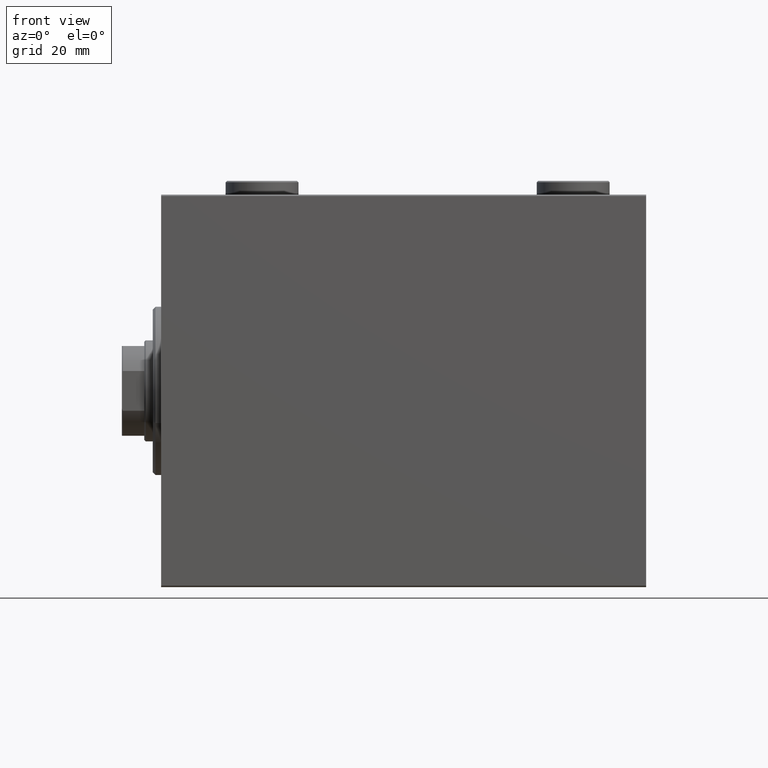
[diagram: clean part render]
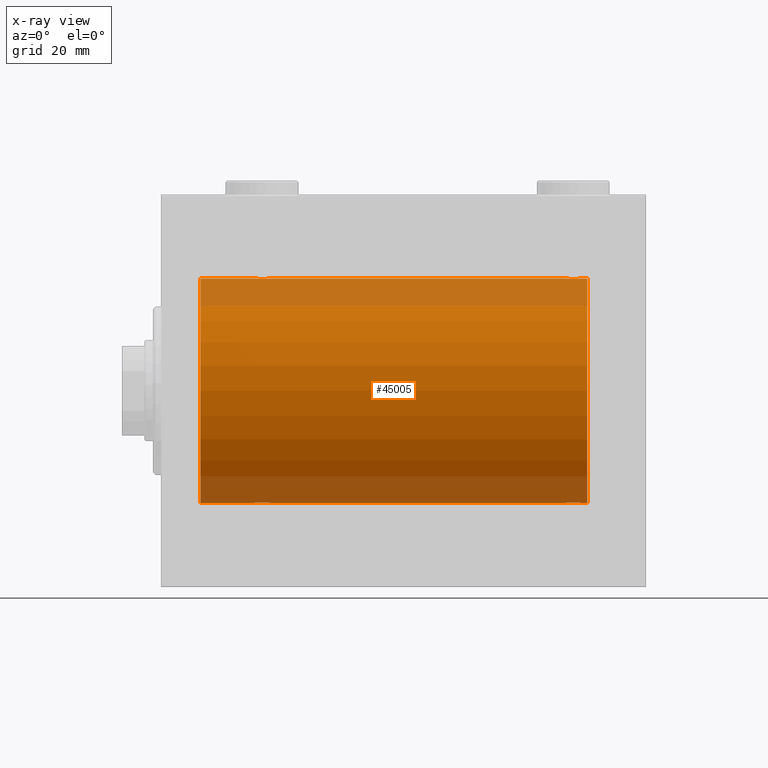
[diagram: x-ray — body ghosted, one internal face saturated and labeled with its STEP entity id]
A machine part, front view, then the same camera in x-ray: the body is ghosted and one INTERNAL B-rep face — a face not visible from any outside direction — is saturated and labeled: STEP entity #45005.
In plain terms, the highlighted cylindrical surface (partial cylindrical patch) has radius 40 mm, axis along (-1, -0, -0).
Its self-contained STEP definition (entity closure, byte-faithful):
#66 = CARTESIAN_POINT ( 'NONE',  ( 144.3956640008792078, -1.502129635934003948, 39.97212271185186694 ) ) ;
#126 = CARTESIAN_POINT ( 'NONE',  ( 39.00000000000000000, 1.037715139942869821E-15, 40.00000000000000000 ) ) ;
#578 = CARTESIAN_POINT ( 'NONE',  ( 38.38251680911464803, -1.833695109615718355, 39.95828327492363741 ) ) ;
#1170 = CARTESIAN_POINT ( 'NONE',  ( 39.00000000000000000, 4.898587181754971267E-15, -40.00000000000000000 ) ) ;
#1403 = VERTEX_POINT ( 'NONE', #8763 ) ;
#1945 = LINE ( 'NONE', #33114, #17585 ) ;
#2087 = CIRCLE ( 'NONE', #43776, 40.00000000000000000 ) ;
#2125 = CARTESIAN_POINT ( 'NONE',  ( 36.96938341894464486, -2.845855236045336412, -39.89870693240652599 ) ) ;
#2176 = DIRECTION ( 'NONE',  ( -1.000000000000000000, -0.000000000000000000, -0.000000000000000000 ) ) ;
#2296 = CARTESIAN_POINT ( 'NONE',  ( 145.4991153159597275, -2.604941918888306951, -39.91523680494984205 ) ) ;
#2454 = CARTESIAN_POINT ( 'NONE',  ( 33.30278659419118270, -1.327859336864150253, 39.97836169682017982 ) ) ;
#3080 = DIRECTION ( 'NONE',  ( -1.000000000000000000, 0.000000000000000000, 0.000000000000000000 ) ) ;
#3244 = VECTOR ( 'NONE', #28144, 1000.000000000000000 ) ;
#3291 = CARTESIAN_POINT ( 'NONE',  ( 144.7390238300526164, -1.981471132463162643, 39.95113231465138171 ) ) ;
#3352 = CARTESIAN_POINT ( 'NONE',  ( 39.00000000000000711, -0.3964922677423692865, 40.00000000000000711 ) ) ;
#3373 = CARTESIAN_POINT ( 'NONE',  ( 13.99999999999998401, 0.000000000000000000, 0.000000000000000000 ) ) ;
#3399 = ORIENTED_EDGE ( 'NONE', *, *, #13589, .T. ) ;
#3522 = CARTESIAN_POINT ( 'NONE',  ( 144.0957482634864846, -0.7773146824711021363, 39.99291453282343412 ) ) ;
#3580 = CARTESIAN_POINT ( 'NONE',  ( 34.16955177177597847, -2.384933850258112553, 39.92898715513240404 ) ) ;
#3654 = VERTEX_POINT ( 'NONE', #1170 ) ;
#3838 = VERTEX_POINT ( 'NONE', #37583 ) ;
#3888 = DIRECTION ( 'NONE',  ( -1.000000000000000000, -0.000000000000000000, -0.000000000000000000 ) ) ;
#4021 = CARTESIAN_POINT ( 'NONE',  ( 37.98136279514229585, -2.261082456166707111, 39.93628274425758207 ) ) ;
#4598 = EDGE_CURVE ( 'NONE', #16472, #37709, #32746, .T. ) ;
#4637 = CARTESIAN_POINT ( 'NONE',  ( 32.99999999999999289, -1.483452932268112700E-23, 40.00000000000000000 ) ) ;
#5248 = CARTESIAN_POINT ( 'NONE',  ( 152.0000000000000000, 0.000000000000000000, 40.00000000000000000 ) ) ;
#5257 = CARTESIAN_POINT ( 'NONE',  ( 146.2254432117366036, -2.904869018727213703, -39.89440043036668726 ) ) ;
#5456 = ORIENTED_EDGE ( 'NONE', *, *, #14884, .F. ) ;
#5488 = CARTESIAN_POINT ( 'NONE',  ( 146.0351067414649151, -2.847401743820447972, -39.89859630624609110 ) ) ;
#5644 = ORIENTED_EDGE ( 'NONE', *, *, #14421, .F. ) ;
#5882 = CARTESIAN_POINT ( 'NONE',  ( 33.01898122889073051, -0.3904143323715976166, 39.99856256910221219 ) ) ;
#6444 = EDGE_CURVE ( 'NONE', #37709, #7546, #2087, .T. ) ;
#6610 = EDGE_CURVE ( 'NONE', #39106, #25376, #39548, .T. ) ;
#6716 = CARTESIAN_POINT ( 'NONE',  ( 147.7745567882635100, -2.904869018727220364, 39.89440043036669437 ) ) ;
#6816 = EDGE_CURVE ( 'NONE', #19506, #7546, #28508, .T. ) ;
#7166 = CARTESIAN_POINT ( 'NONE',  ( 145.0153855218772208, -2.258217541132898631, 39.93644519243653690 ) ) ;
#7225 = CARTESIAN_POINT ( 'NONE',  ( 36.39109692509333627, -2.980812880639903906, 39.88879797994688658 ) ) ;
#7449 = CARTESIAN_POINT ( 'NONE',  ( 34.66775731134134730, -2.695129988695744494, 39.90917164320281074 ) ) ;
#7546 = VERTEX_POINT ( 'NONE', #39032 ) ;
#7772 = CARTESIAN_POINT ( 'NONE',  ( 152.0000000000000000, 4.898587196589413026E-15, -40.00000000000000000 ) ) ;
#8051 = VECTOR ( 'NONE', #32102, 1000.000000000000000 ) ;
#8469 = CARTESIAN_POINT ( 'NONE',  ( 149.2609761699473836, -1.981471132463159313, -39.95113231465138171 ) ) ;
#8592 = DIRECTION ( 'NONE',  ( -1.000000000000000000, -0.000000000000000000, -0.000000000000000000 ) ) ;
#8694 = CARTESIAN_POINT ( 'NONE',  ( 146.8043946892691451, -3.000157693440632212, -39.88732948994960736 ) ) ;
#8752 = CARTESIAN_POINT ( 'NONE',  ( 33.39811271871507614, -1.506322235190776127, -39.97196309111974699 ) ) ;
#8763 = CARTESIAN_POINT ( 'NONE',  ( 144.0000000000000284, 2.642090954555614270E-16, -40.00000000000000000 ) ) ;
#9210 = CARTESIAN_POINT ( 'NONE',  ( 39.00000000000000000, -0.1957844162750501937, -39.99999999999999289 ) ) ;
#9441 = CARTESIAN_POINT ( 'NONE',  ( 34.17309815367587333, -2.387636253591803648, -39.92882473497732576 ) ) ;
#9703 = CARTESIAN_POINT ( 'NONE',  ( 145.4955691708653092, -2.602909538701757342, 39.91537030566259858 ) ) ;
#9844 = EDGE_LOOP ( 'NONE', ( #16695, #34282, #23119, #24502, #19437, #32510, #25388, #19690, #14177, #5644, #3399, #5456 ) ) ;
#9873 = CARTESIAN_POINT ( 'NONE',  ( 32.99999999999999289, 8.398598542115384856E-15, -40.00000000000000000 ) ) ;
#10207 = CARTESIAN_POINT ( 'NONE',  ( 35.79958713980802543, -2.999840380514749327, 39.88735335562824247 ) ) ;
#10364 = CARTESIAN_POINT ( 'NONE',  ( 144.1533472698686182, -0.9668189122103342248, 39.98872185468384544 ) ) ;
#10585 = CARTESIAN_POINT ( 'NONE',  ( 147.3910969250933931, -2.980812880639897688, 39.88879797994690080 ) ) ;
#10648 = CARTESIAN_POINT ( 'NONE',  ( 35.22130476584258219, -2.903766417398241373, 39.89448096967571189 ) ) ;
#10872 = CARTESIAN_POINT ( 'NONE',  ( 33.73902383005257377, -1.981471132463168416, 39.95113231465138881 ) ) ;
#11349 = CARTESIAN_POINT ( 'NONE',  ( 39.00000000000000000, 1.037715139942869821E-15, 40.00000000000000000 ) ) ;
#11890 = CARTESIAN_POINT ( 'NONE',  ( 150.0000000000000284, 4.898587181765620889E-15, -40.00000000000000000 ) ) ;
#11952 = CARTESIAN_POINT ( 'NONE',  ( 36.20041286019198168, -2.999840380514733340, -39.88735335562824957 ) ) ;
#12120 = CARTESIAN_POINT ( 'NONE',  ( 147.3952248345358669, -2.980272303779540444, -39.88883864243170763 ) ) ;
#12186 = CARTESIAN_POINT ( 'NONE',  ( 33.74170329679496660, -1.984537326394296253, -39.95097977400577349 ) ) ;
#12353 = CARTESIAN_POINT ( 'NONE',  ( 147.2004128601920740, -2.999840380514735561, -39.88735335562826378 ) ) ;
#12578 = CARTESIAN_POINT ( 'NONE',  ( 144.3046299229156375, -1.331594428131649410, -39.97823692017209396 ) ) ;
#12878 = CARTESIAN_POINT ( 'NONE',  ( 35.80439468926913094, -3.000157693440628659, -39.88732948994960736 ) ) ;
#13284 = B_SPLINE_CURVE_WITH_KNOTS ( 'NONE', 3,
 ( #16333, #9210, #32841, #43816, #44277, #22969, #33519, #25962, #15641, #29633, #18860, #26195, #36944, #2125, #26420, #40843, #11952, #12878, #26877, #16101, #19086, #33062, #19308, #9441, #36716, #12186, #30090, #8752, #26646, #40610, #33288, #23435 ),
 .UNSPECIFIED., .F., .F.,
 ( 4, 2, 2, 2, 2, 2, 2, 2, 2, 2, 2, 2, 2, 2, 2, 4 ),
 ( 0.009382660366305113978, 0.009968941372944149781, 0.01055522237958318559, 0.01114150338622222139, 0.01172778439286125719, 0.01231406539950029300, 0.01290034640613932707, 0.01348662741277836287, 0.01407290841941739867, 0.01465918942605643448, 0.01524547043269547028, 0.01583175143933450435, 0.01641803244597354189, 0.01700431345261257943, 0.01759059445925161697, 0.01876315647252968857 ),
 .UNSPECIFIED. ) ;
#13589 = EDGE_CURVE ( 'NONE', #29941, #3838, #16314, .T. ) ;
#13821 = CARTESIAN_POINT ( 'NONE',  ( 148.8269018463241480, -2.387636253591820079, 39.92882473497732576 ) ) ;
#13896 = DIRECTION ( 'NONE',  ( 0.000000000000000000, 0.000000000000000000, 1.000000000000000000 ) ) ;
#14042 = CARTESIAN_POINT ( 'NONE',  ( 146.6047751654642468, -2.980272303779546217, 39.88883864243170052 ) ) ;
#14177 = ORIENTED_EDGE ( 'NONE', *, *, #37969, .T. ) ;
#14421 = EDGE_CURVE ( 'NONE', #29941, #44025, #1945, .T. ) ;
#14450 = LINE ( 'NONE', #35311, #8051 ) ;
#14516 = CARTESIAN_POINT ( 'NONE',  ( 152.0000000000000000, 0.000000000000000000, 40.00000000000000000 ) ) ;
#14556 = CARTESIAN_POINT ( 'NONE',  ( 38.69537007708435539, -1.331594428131644747, 39.97823692017209396 ) ) ;
#14884 = EDGE_CURVE ( 'NONE', #40123, #3838, #14450, .T. ) ;
#15348 = CARTESIAN_POINT ( 'NONE',  ( 149.9042517365135438, -0.7773146824710949199, -39.99291453282344833 ) ) ;
#15641 = CARTESIAN_POINT ( 'NONE',  ( 38.26097616994741912, -1.981471132463159535, -39.95113231465138881 ) ) ;
#16042 = CARTESIAN_POINT ( 'NONE',  ( 144.0797382500835795, -0.7903958539027464703, -39.99381900068937057 ) ) ;
#16101 = CARTESIAN_POINT ( 'NONE',  ( 35.22544321173659654, -2.904869018727211483, -39.89440043036668726 ) ) ;
#16185 = EDGE_CURVE ( 'NONE', #39106, #40123, #19084, .T. ) ;
#16270 = CARTESIAN_POINT ( 'NONE',  ( 144.6174831908854230, -1.833695109615717245, -39.95828327492364451 ) ) ;
#16314 = B_SPLINE_CURVE_WITH_KNOTS ( 'NONE', 3,
 ( #34466, #34909, #30580, #3522, #10364, #24365, #66, #38112, #3291, #7166, #34019, #9703, #41558, #16602, #24145, #14042, #42001, #27146, #10585, #6716, #20705, #34683, #31251, #13821, #41111, #16828, #44770, #44550, #41334, #27812, #24594, #38555 ),
 .UNSPECIFIED., .F., .F.,
 ( 4, 2, 2, 2, 2, 2, 2, 2, 2, 2, 2, 2, 2, 2, 2, 4 ),
 ( 0.009382660366305094896, 0.009968941372944130699, 0.01055522237958316650, 0.01114150338622220404, 0.01172778439286123985, 0.01231406539950027565, 0.01290034640613930972, 0.01348662741277834379, 0.01407290841941737959, 0.01465918942605641540, 0.01524547043269544946, 0.01583175143933448353, 0.01641803244597352107, 0.01700431345261255514, 0.01759059445925158921, 0.01876315647252969204 ),
 .UNSPECIFIED. ) ;
#16333 = CARTESIAN_POINT ( 'NONE',  ( 39.00000000000000000, 4.898587181754971267E-15, -40.00000000000000000 ) ) ;
#16472 = VERTEX_POINT ( 'NONE', #9873 ) ;
#16602 = CARTESIAN_POINT ( 'NONE',  ( 146.0306165810553409, -2.845855236045348402, 39.89870693240650468 ) ) ;
#16695 = ORIENTED_EDGE ( 'NONE', *, *, #16185, .F. ) ;
#16828 = CARTESIAN_POINT ( 'NONE',  ( 149.2582967032050760, -1.984537326394308909, 39.95097977400577349 ) ) ;
#17135 = EDGE_CURVE ( 'NONE', #3654, #16472, #13284, .T. ) ;
#17553 = CARTESIAN_POINT ( 'NONE',  ( 36.19560531073086906, -3.000157693440643758, 39.88732948994960026 ) ) ;
#17585 = VECTOR ( 'NONE', #2176, 1000.000000000000000 ) ;
#17774 = CARTESIAN_POINT ( 'NONE',  ( 35.60477516546423260, -2.980272303779553766, 39.88883864243167920 ) ) ;
#18003 = CARTESIAN_POINT ( 'NONE',  ( 36.96489325853514174, -2.847401743820462183, 39.89859630624607689 ) ) ;
#18860 = CARTESIAN_POINT ( 'NONE',  ( 37.83044822822401443, -2.384933850258097010, -39.92898715513240404 ) ) ;
#19022 = CARTESIAN_POINT ( 'NONE',  ( 147.9693834189446591, -2.845855236045343961, -39.89870693240651889 ) ) ;
#19084 = CIRCLE ( 'NONE', #27860, 40.00000000000000000 ) ;
#19086 = CARTESIAN_POINT ( 'NONE',  ( 35.03510674146485115, -2.847401743820447084, -39.89859630624608400 ) ) ;
#19249 = CARTESIAN_POINT ( 'NONE',  ( 148.9846144781228645, -2.258217541132895967, -39.93644519243653690 ) ) ;
#19308 = CARTESIAN_POINT ( 'NONE',  ( 34.49911531595964220, -2.604941918888299401, -39.91523680494982784 ) ) ;
#19437 = ORIENTED_EDGE ( 'NONE', *, *, #17135, .T. ) ;
#19475 = CARTESIAN_POINT ( 'NONE',  ( 144.7417032967949524, -1.984537326394303802, -39.95097977400578060 ) ) ;
#19506 = VERTEX_POINT ( 'NONE', #4637 ) ;
#19690 = ORIENTED_EDGE ( 'NONE', *, *, #6816, .F. ) ;
#19870 = CARTESIAN_POINT ( 'NONE',  ( 33.09574826348647036, -0.7773146824711036906, 39.99291453282343412 ) ) ;
#20705 = CARTESIAN_POINT ( 'NONE',  ( 147.9648932585351702, -2.847401743820454190, 39.89859630624609821 ) ) ;
#20986 = CARTESIAN_POINT ( 'NONE',  ( 34.01538552187719233, -2.258217541132905293, 39.93644519243653690 ) ) ;
#21436 = CARTESIAN_POINT ( 'NONE',  ( 37.50088468404035069, -2.604941918888315833, 39.91523680494983495 ) ) ;
#22355 = CARTESIAN_POINT ( 'NONE',  ( 152.0000000000000000, 4.898587196589413026E-15, -40.00000000000000000 ) ) ;
#22453 = CARTESIAN_POINT ( 'NONE',  ( 148.8304482282240429, -2.384933850258102783, -39.92898715513240404 ) ) ;
#22509 = AXIS2_PLACEMENT_3D ( 'NONE', #43952, #44639, #27460 ) ;
#22878 = FACE_OUTER_BOUND ( 'NONE', #9844, .T. ) ;
#22905 = CARTESIAN_POINT ( 'NONE',  ( 145.1730981536759089, -2.387636253591812974, -39.92882473497733287 ) ) ;
#22969 = CARTESIAN_POINT ( 'NONE',  ( 38.69721340580881019, -1.327859336864143147, -39.97836169682018692 ) ) ;
#23119 = ORIENTED_EDGE ( 'NONE', *, *, #34210, .T. ) ;
#23435 = CARTESIAN_POINT ( 'NONE',  ( 32.99999999999999289, 8.398598542115384856E-15, -40.00000000000000000 ) ) ;
#24002 = DIRECTION ( 'NONE',  ( -1.000000000000000000, 0.000000000000000000, 0.000000000000000000 ) ) ;
#24145 = CARTESIAN_POINT ( 'NONE',  ( 146.2213047658425467, -2.903766417398230271, 39.89448096967571189 ) ) ;
#24365 = CARTESIAN_POINT ( 'NONE',  ( 144.3027865941912182, -1.327859336864145590, 39.97836169682017982 ) ) ;
#24502 = ORIENTED_EDGE ( 'NONE', *, *, #30018, .T. ) ;
#24594 = CARTESIAN_POINT ( 'NONE',  ( 150.0000000000000284, -0.3964922677423700081, 40.00000000000001421 ) ) ;
#24882 = CARTESIAN_POINT ( 'NONE',  ( 36.77455678826341057, -2.904869018727228358, 39.89440043036668015 ) ) ;
#24937 = CARTESIAN_POINT ( 'NONE',  ( 13.99999999999998401, 4.898587196589413026E-15, -40.00000000000000000 ) ) ;
#25376 = VERTEX_POINT ( 'NONE', #27084 ) ;
#25388 = ORIENTED_EDGE ( 'NONE', *, *, #6444, .T. ) ;
#25899 = CARTESIAN_POINT ( 'NONE',  ( 149.9810187711093477, -0.3904143323715905112, -39.99856256910220509 ) ) ;
#25962 = CARTESIAN_POINT ( 'NONE',  ( 38.38507600915352924, -1.830402106103509174, -39.95843610133493229 ) ) ;
#26131 = CARTESIAN_POINT ( 'NONE',  ( 149.6043359991207922, -1.502129635934003726, -39.97212271185185273 ) ) ;
#26195 = CARTESIAN_POINT ( 'NONE',  ( 37.50443082913467663, -2.602909538701744463, -39.91537030566261279 ) ) ;
#26358 = CARTESIAN_POINT ( 'NONE',  ( 149.8466527301314386, -0.9668189122103240107, -39.98872185468385254 ) ) ;
#26420 = CARTESIAN_POINT ( 'NONE',  ( 36.77869523415741781, -2.903766417398227162, -39.89448096967571900 ) ) ;
#26583 = CARTESIAN_POINT ( 'NONE',  ( 144.0000000000000284, 2.642090954555614270E-16, -40.00000000000000000 ) ) ;
#26646 = CARTESIAN_POINT ( 'NONE',  ( 33.30462992291564461, -1.331594428131637420, -39.97823692017210817 ) ) ;
#26877 = CARTESIAN_POINT ( 'NONE',  ( 35.60890307490667794, -2.980812880639888363, -39.88879797994690080 ) ) ;
#27084 = CARTESIAN_POINT ( 'NONE',  ( 150.0000000000000284, 4.898587181765620889E-15, -40.00000000000000000 ) ) ;
#27146 = CARTESIAN_POINT ( 'NONE',  ( 147.1956053107309685, -3.000157693440639761, 39.88732948994960736 ) ) ;
#27460 = DIRECTION ( 'NONE',  ( 0.000000000000000000, 0.000000000000000000, 1.000000000000000000 ) ) ;
#27812 = CARTESIAN_POINT ( 'NONE',  ( 149.9202617499165342, -0.7903958539027363672, 39.99381900068937767 ) ) ;
#27860 = AXIS2_PLACEMENT_3D ( 'NONE', #34474, #3080, #45225 ) ;
#27870 = CARTESIAN_POINT ( 'NONE',  ( 35.03061658105534804, -2.845855236045349734, 39.89870693240651889 ) ) ;
#28144 = DIRECTION ( 'NONE',  ( -1.000000000000000000, -0.000000000000000000, -0.000000000000000000 ) ) ;
#28324 = CARTESIAN_POINT ( 'NONE',  ( 38.60188728128492386, -1.506322235190783232, 39.97196309111974699 ) ) ;
#28495 = CARTESIAN_POINT ( 'NONE',  ( 152.0000000000000000, 4.898587196589413026E-15, -40.00000000000000000 ) ) ;
#28508 = LINE ( 'NONE', #14516, #39431 ) ;
#29633 = CARTESIAN_POINT ( 'NONE',  ( 37.98461447812281477, -2.258217541132894191, -39.93644519243654400 ) ) ;
#29941 = VERTEX_POINT ( 'NONE', #39115 ) ;
#30018 = EDGE_CURVE ( 'NONE', #1403, #3654, #32705, .T. ) ;
#30026 = CARTESIAN_POINT ( 'NONE',  ( 144.0000000000000284, -0.3964922677423716735, -40.00000000000001421 ) ) ;
#30090 = CARTESIAN_POINT ( 'NONE',  ( 33.61748319088536618, -1.833695109615709917, -39.95828327492364451 ) ) ;
#30580 = CARTESIAN_POINT ( 'NONE',  ( 144.0189812288907660, -0.3904143323715967839, 39.99856256910221219 ) ) ;
#31251 = CARTESIAN_POINT ( 'NONE',  ( 148.5008846840404146, -2.604941918888313612, 39.91523680494984916 ) ) ;
#31535 = CARTESIAN_POINT ( 'NONE',  ( 38.92026174991647025, -0.7903958539027386987, 39.99381900068935636 ) ) ;
#31977 = CARTESIAN_POINT ( 'NONE',  ( 38.25829670320502629, -1.984537326394305801, 39.95097977400578060 ) ) ;
#32102 = DIRECTION ( 'NONE',  ( -1.000000000000000000, -0.000000000000000000, -0.000000000000000000 ) ) ;
#32510 = ORIENTED_EDGE ( 'NONE', *, *, #4598, .T. ) ;
#32705 = LINE ( 'NONE', #43015, #3244 ) ;
#32746 = LINE ( 'NONE', #7772, #36458 ) ;
#32774 = CARTESIAN_POINT ( 'NONE',  ( 150.0000000000000568, -0.1957844162750477235, -40.00000000000000000 ) ) ;
#32841 = CARTESIAN_POINT ( 'NONE',  ( 38.98101877110926239, -0.3904143323715922875, -39.99856256910221219 ) ) ;
#33062 = CARTESIAN_POINT ( 'NONE',  ( 34.67146355253703405, -2.696981015661913172, -39.90904630908467254 ) ) ;
#33114 = CARTESIAN_POINT ( 'NONE',  ( 152.0000000000000000, 0.000000000000000000, 40.00000000000000000 ) ) ;
#33225 = CARTESIAN_POINT ( 'NONE',  ( 148.5044308291346908, -2.602909538701751568, -39.91537030566260569 ) ) ;
#33288 = CARTESIAN_POINT ( 'NONE',  ( 33.00000000000000000, -0.3964922677423601272, -40.00000000000001421 ) ) ;
#33457 = CARTESIAN_POINT ( 'NONE',  ( 144.3981127187151969, -1.506322235190783898, -39.97196309111976831 ) ) ;
#33519 = CARTESIAN_POINT ( 'NONE',  ( 38.60433599912082769, -1.502129635933996621, -39.97212271185184562 ) ) ;
#33850 = CARTESIAN_POINT ( 'NONE',  ( 33.15334726986859692, -0.9668189122103387767, 39.98872185468385254 ) ) ;
#34019 = CARTESIAN_POINT ( 'NONE',  ( 145.1695517717760424, -2.384933850258109445, 39.92898715513240404 ) ) ;
#34210 = EDGE_CURVE ( 'NONE', #25376, #1403, #44212, .T. ) ;
#34282 = ORIENTED_EDGE ( 'NONE', *, *, #6610, .T. ) ;
#34466 = CARTESIAN_POINT ( 'NONE',  ( 144.0000000000000284, -1.482387970046064334E-23, 40.00000000000000000 ) ) ;
#34474 = CARTESIAN_POINT ( 'NONE',  ( 152.0000000000000000, 0.000000000000000000, 0.000000000000000000 ) ) ;
#34683 = CARTESIAN_POINT ( 'NONE',  ( 148.3285364474630228, -2.696981015661923387, 39.90904630908469386 ) ) ;
#34744 = CARTESIAN_POINT ( 'NONE',  ( 37.82690184632411246, -2.387636253591820079, 39.92882473497731866 ) ) ;
#34909 = CARTESIAN_POINT ( 'NONE',  ( 144.0000000000000284, -0.1957844162750525807, 40.00000000000000000 ) ) ;
#34969 = CARTESIAN_POINT ( 'NONE',  ( 37.32853644746295885, -2.696981015661930936, 39.90904630908465833 ) ) ;
#35244 = B_SPLINE_CURVE_WITH_KNOTS ( 'NONE', 3,
 ( #37047, #37281, #5882, #19870, #33850, #2454, #41620, #35414, #10872, #20986, #3580, #42283, #7449, #27870, #10648, #17774, #10207, #17553, #7225, #24882, #18003, #34969, #21436, #34744, #4021, #31977, #578, #28324, #14556, #31535, #3352, #126 ),
 .UNSPECIFIED., .F., .F.,
 ( 4, 2, 2, 2, 2, 2, 2, 2, 2, 2, 2, 2, 2, 2, 2, 4 ),
 ( 0.009382660366305105304, 0.009968941372944142842, 0.01055522237958318038, 0.01114150338622221965, 0.01172778439286125719, 0.01231406539950029473, 0.01290034640613933400, 0.01348662741277837154, 0.01407290841941740908, 0.01465918942605644835, 0.01524547043269548416, 0.01583175143933452517, 0.01641803244597356271, 0.01700431345261260024, 0.01759059445925163778, 0.01876315647252971286 ),
 .UNSPECIFIED. ) ;
#35311 = CARTESIAN_POINT ( 'NONE',  ( 152.0000000000000000, 0.000000000000000000, 40.00000000000000000 ) ) ;
#35414 = CARTESIAN_POINT ( 'NONE',  ( 33.61492399084646365, -1.830402106103518722, 39.95843610133494650 ) ) ;
#36433 = CARTESIAN_POINT ( 'NONE',  ( 148.3322426886586527, -2.695129988695739609, -39.90917164320282495 ) ) ;
#36458 = VECTOR ( 'NONE', #3888, 1000.000000000000000 ) ;
#36653 = CARTESIAN_POINT ( 'NONE',  ( 146.6089030749067490, -2.980812880639890583, -39.88879797994690080 ) ) ;
#36716 = CARTESIAN_POINT ( 'NONE',  ( 34.01863720485771125, -2.261082456166694676, -39.93628274425758917 ) ) ;
#36851 = CYLINDRICAL_SURFACE ( 'NONE', #22509, 40.00000000000000000 ) ;
#36879 = CARTESIAN_POINT ( 'NONE',  ( 145.0186372048578107, -2.261082456166703558, -39.93628274425759628 ) ) ;
#36944 = CARTESIAN_POINT ( 'NONE',  ( 37.33224268865864559, -2.695129988695730727, -39.90917164320281074 ) ) ;
#37047 = CARTESIAN_POINT ( 'NONE',  ( 32.99999999999999289, -1.483452932268112700E-23, 40.00000000000000000 ) ) ;
#37281 = CARTESIAN_POINT ( 'NONE',  ( 32.99999999999997158, -0.1957844162750552452, 40.00000000000000000 ) ) ;
#37583 = CARTESIAN_POINT ( 'NONE',  ( 150.0000000000000284, 1.446721683758770418E-15, 40.00000000000000000 ) ) ;
#37709 = VERTEX_POINT ( 'NONE', #24937 ) ;
#37969 = EDGE_CURVE ( 'NONE', #19506, #44025, #35244, .T. ) ;
#38112 = CARTESIAN_POINT ( 'NONE',  ( 144.6149239908465063, -1.830402106103516280, 39.95843610133492518 ) ) ;
#38555 = CARTESIAN_POINT ( 'NONE',  ( 150.0000000000000284, 1.446721683758770418E-15, 40.00000000000000000 ) ) ;
#38576 = DIRECTION ( 'NONE',  ( -1.000000000000000000, -0.000000000000000000, -0.000000000000000000 ) ) ;
#39032 = CARTESIAN_POINT ( 'NONE',  ( 13.99999999999998401, 0.000000000000000000, 40.00000000000000000 ) ) ;
#39106 = VERTEX_POINT ( 'NONE', #28495 ) ;
#39115 = CARTESIAN_POINT ( 'NONE',  ( 144.0000000000000284, -1.482387970046064334E-23, 40.00000000000000000 ) ) ;
#39431 = VECTOR ( 'NONE', #38576, 1000.000000000000000 ) ;
#39548 = LINE ( 'NONE', #22355, #41605 ) ;
#39861 = CARTESIAN_POINT ( 'NONE',  ( 149.3850760091535790, -1.830402106103514281, -39.95843610133493229 ) ) ;
#40123 = VERTEX_POINT ( 'NONE', #5248 ) ;
#40317 = CARTESIAN_POINT ( 'NONE',  ( 145.6714635525370625, -2.696981015661914949, -39.90904630908467965 ) ) ;
#40610 = CARTESIAN_POINT ( 'NONE',  ( 33.07973825008353685, -0.7903958539027335917, -39.99381900068937057 ) ) ;
#40843 = CARTESIAN_POINT ( 'NONE',  ( 36.39522483453575319, -2.980272303779539556, -39.88883864243169342 ) ) ;
#41111 = CARTESIAN_POINT ( 'NONE',  ( 148.9813627951423030, -2.261082456166709775, 39.93628274425758207 ) ) ;
#41334 = CARTESIAN_POINT ( 'NONE',  ( 149.6953700770844193, -1.331594428131642527, 39.97823692017210107 ) ) ;
#41558 = CARTESIAN_POINT ( 'NONE',  ( 145.6677573113414326, -2.695129988695745826, 39.90917164320281074 ) ) ;
#41605 = VECTOR ( 'NONE', #8592, 1000.000000000000000 ) ;
#41620 = CARTESIAN_POINT ( 'NONE',  ( 33.39566400087915810, -1.502129635934004614, 39.97212271185186694 ) ) ;
#42001 = CARTESIAN_POINT ( 'NONE',  ( 146.7995871398080112, -2.999840380514742666, 39.88735335562825668 ) ) ;
#42283 = CARTESIAN_POINT ( 'NONE',  ( 34.49556917086533758, -2.602909538701760006, 39.91537030566259148 ) ) ;
#43015 = CARTESIAN_POINT ( 'NONE',  ( 152.0000000000000000, 4.898587196589413026E-15, -40.00000000000000000 ) ) ;
#43752 = CARTESIAN_POINT ( 'NONE',  ( 147.7786952341575102, -2.903766417398225830, -39.89448096967572610 ) ) ;
#43776 = AXIS2_PLACEMENT_3D ( 'NONE', #3373, #24002, #13896 ) ;
#43816 = CARTESIAN_POINT ( 'NONE',  ( 38.90425173651352253, -0.7773146824710970293, -39.99291453282343412 ) ) ;
#43952 = CARTESIAN_POINT ( 'NONE',  ( 152.0000000000000000, 0.000000000000000000, 0.000000000000000000 ) ) ;
#44025 = VERTEX_POINT ( 'NONE', #11349 ) ;
#44212 = B_SPLINE_CURVE_WITH_KNOTS ( 'NONE', 3,
 ( #11890, #32774, #25899, #15348, #26358, #44214, #26131, #39861, #8469, #19249, #22453, #33225, #36433, #19022, #43752, #12120, #12353, #8694, #36653, #5257, #5488, #40317, #2296, #22905, #36879, #19475, #16270, #33457, #12578, #16042, #30026, #26583 ),
 .UNSPECIFIED., .F., .F.,
 ( 4, 2, 2, 2, 2, 2, 2, 2, 2, 2, 2, 2, 2, 2, 2, 4 ),
 ( 0.009382660366305101834, 0.009968941372944135904, 0.01055522237958316997, 0.01114150338622220404, 0.01172778439286123811, 0.01231406539950027391, 0.01290034640613930798, 0.01348662741277834205, 0.01407290841941737612, 0.01465918942605641019, 0.01524547043269544426, 0.01583175143933447659, 0.01641803244597351413, 0.01700431345261254473, 0.01759059445925158227, 0.01876315647252968163 ),
 .UNSPECIFIED. ) ;
#44214 = CARTESIAN_POINT ( 'NONE',  ( 149.6972134058088670, -1.327859336864134043, -39.97836169682016561 ) ) ;
#44277 = CARTESIAN_POINT ( 'NONE',  ( 38.84665273013138886, -0.9668189122103337807, -39.98872185468385965 ) ) ;
#44550 = CARTESIAN_POINT ( 'NONE',  ( 149.6018872812850020, -1.506322235190787895, 39.97196309111976831 ) ) ;
#44639 = DIRECTION ( 'NONE',  ( -1.000000000000000000, -0.000000000000000000, -0.000000000000000000 ) ) ;
#44770 = CARTESIAN_POINT ( 'NONE',  ( 149.3825168091146622, -1.833695109615722352, 39.95828327492363030 ) ) ;
#45005 = ADVANCED_FACE ( 'NONE', ( #22878 ), #36851, .F. ) ;
#45225 = DIRECTION ( 'NONE',  ( 0.000000000000000000, 0.000000000000000000, 1.000000000000000000 ) ) ;